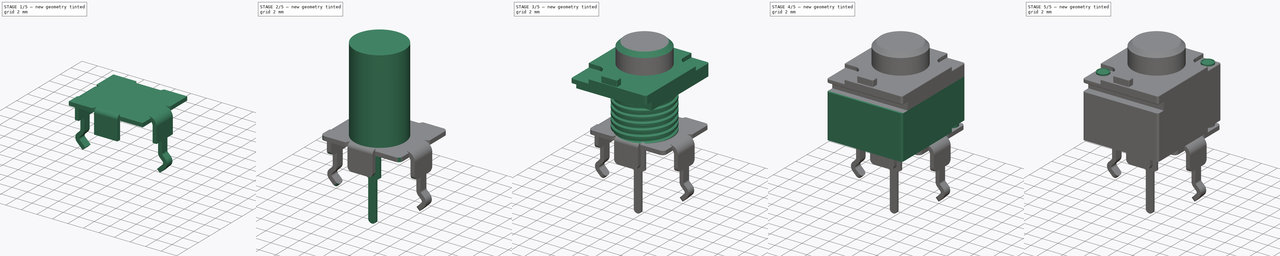
[diagram: build sequence overview — one tinted view per stage of 5, left to right]
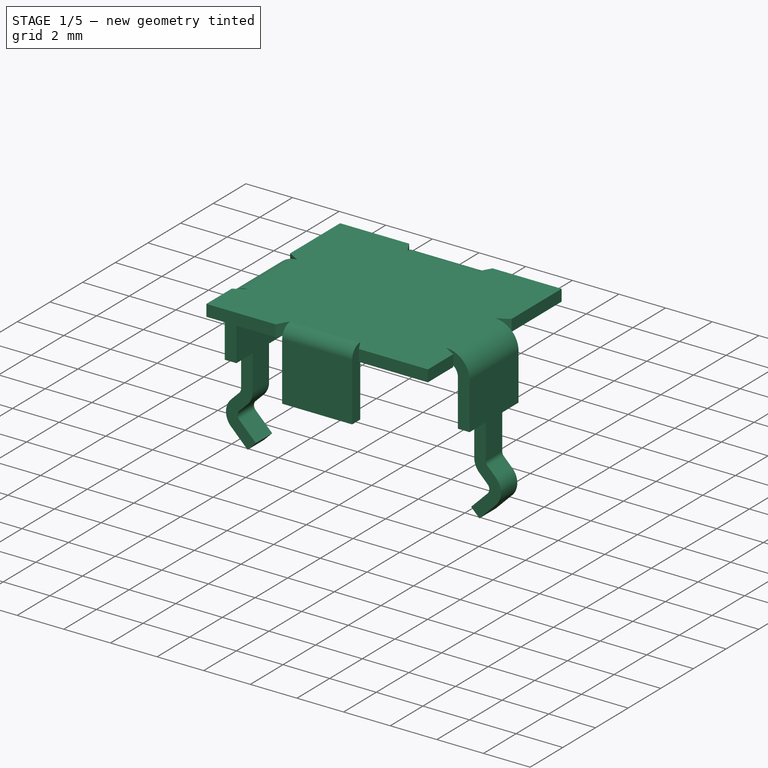
[diagram: stage 1 of 5 — iso view after this stage's code; geometry added in this stage tinted green]
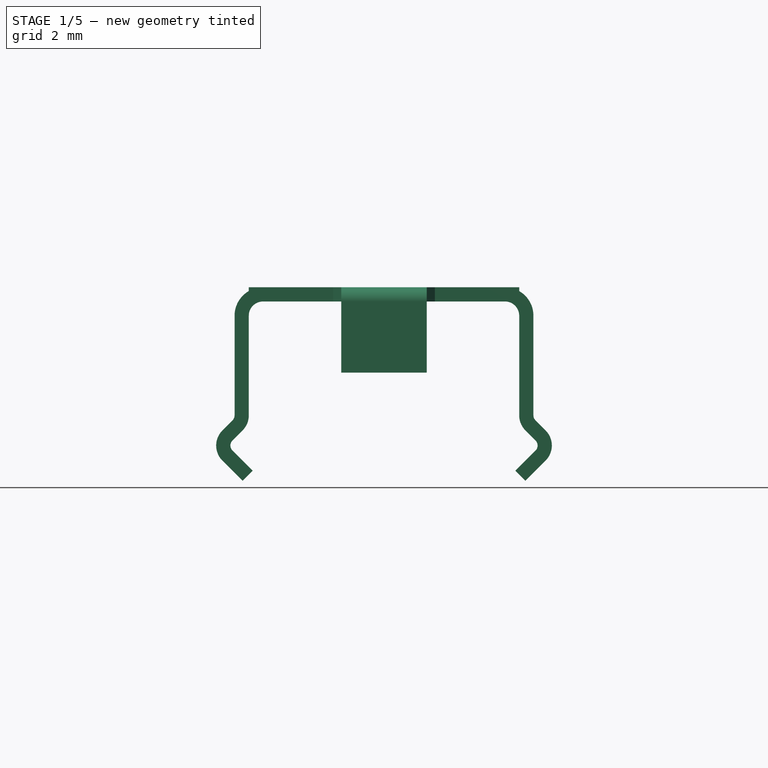
[diagram: stage 1 of 5 — front view after this stage's code; geometry added in this stage tinted green]
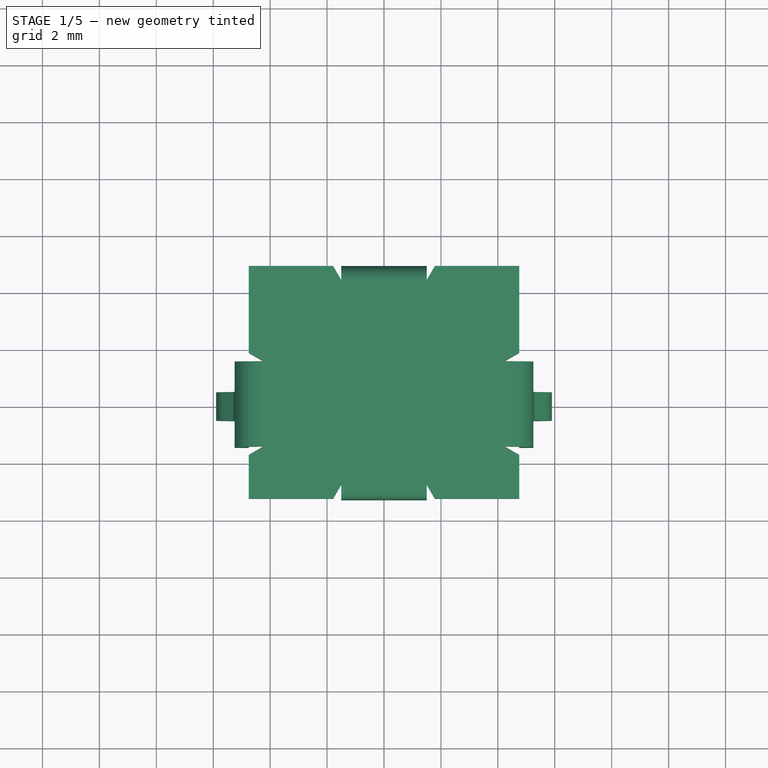
[diagram: stage 1 of 5 — top view after this stage's code; geometry added in this stage tinted green]
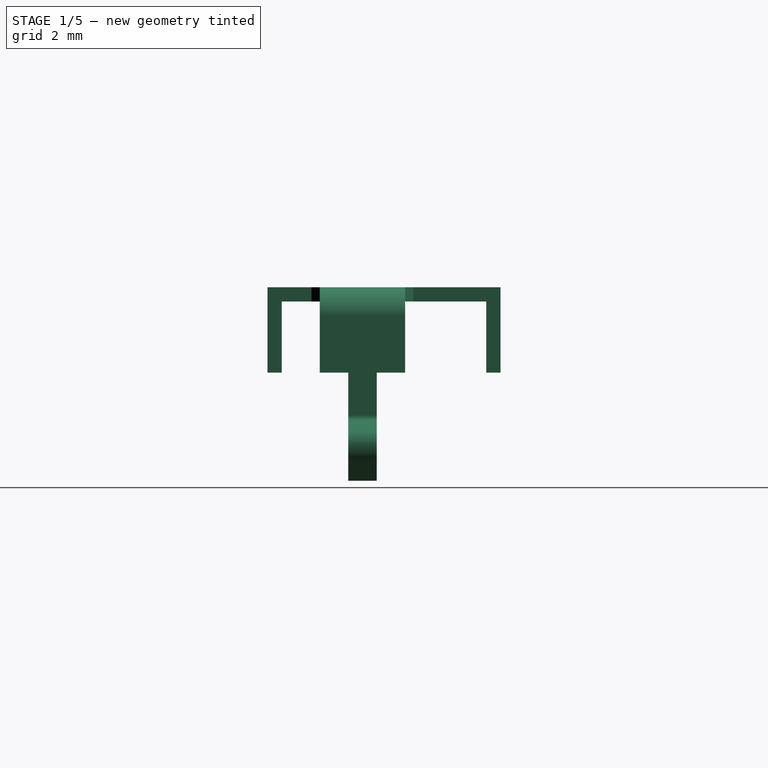
[diagram: stage 1 of 5 — right view after this stage's code; geometry added in this stage tinted green]
FCSTD DOCUMENT  (FreeCAD 0.19R16699 (Git))
Label: RD901F-40-15R
License: All rights reserved
LicenseURL: http://en.wikipedia.org/wiki/All_rights_reserved
objects: Sketcher::SketchObject×19, PartDesign::Pad×15, PartDesign::Fillet×14, PartDesign::Body×14, PartDesign::FeaturePython×7, App::Part×5, PartDesign::Pocket×3, PartDesign::Thickness×2, PartDesign::FeatureBase×2, Part::Helix×1, PartDesign::ShapeBinder×1, PartDesign::SubtractivePipe×1, PartDesign::Chamfer×1
note: 99 computed .brp shape members not serialized (recipe doc carries the construction recipe); baked Part::Feature solids carry a one-line shape summary decoded from their .brp

FEATURE [PartDesign::Body] Body013  label="Terminal_Type_40_1"
  BaseFeature = -> Body011
  Group = -> [Clone001]
  Origin = -> Origin003
  Placement = pos=(-2.5,0,0) rot=(0,0,1;0rad)
  Tip = -> Clone001
FEATURE [App::Part] Part003  label="RD901F_Terminal_Type_40_3x"
  Group = -> [Body011,Body012,Body013]
  Origin = -> Origin015
  Placement = pos=(0,-6.5,2.5) rot=(0,0,1;0rad)
FEATURE [Sketcher::SketchObject] Sketch019
  MapMode = 5
  Support = -> [XY_Plane017]
  sketch-geometry (24):
    g0: LineSegment [constr] StartX=-4.75 StartY=4.85 StartZ=0 EndX=4.75 EndY=4.85 EndZ=0
    g1: LineSegment [constr] StartX=4.75 StartY=4.85 StartZ=0 EndX=4.75 EndY=-6.5 EndZ=0
    g2: LineSegment [constr] StartX=4.75 StartY=-6.5 StartZ=0 EndX=-4.75 EndY=-6.5 EndZ=0
    g3: LineSegment [constr] StartX=-4.75 StartY=-6.5 StartZ=0 EndX=-4.75 EndY=4.85 EndZ=0
    g4: LineSegment StartX=-4.75 StartY=4.85 StartZ=0 EndX=-1.78868 EndY=4.85 EndZ=0
    g5: LineSegment StartX=-1.78868 StartY=4.85 StartZ=0 EndX=-1.5 EndY=4.35 EndZ=0
    g6: LineSegment StartX=-1.5 StartY=4.35 StartZ=0 EndX=1.5 EndY=4.35 EndZ=0
    g7: LineSegment StartX=1.5 StartY=4.35 StartZ=0 EndX=1.78868 EndY=4.85 EndZ=0
    g8: LineSegment StartX=1.78868 StartY=4.85 StartZ=0 EndX=4.75 EndY=4.85 EndZ=0
    g9: LineSegment StartX=4.75 StartY=4.85 StartZ=0 EndX=4.75 EndY=1.78868 EndZ=0
    g10: LineSegment StartX=4.75 StartY=1.78868 StartZ=0 EndX=4.25 EndY=1.5 EndZ=0
    g11: LineSegment StartX=4.25 StartY=1.5 StartZ=0 EndX=4.25 EndY=-1.5 EndZ=0
    g12: LineSegment StartX=4.25 StartY=-1.5 StartZ=0 EndX=4.75 EndY=-1.78868 EndZ=0
    g13: LineSegment StartX=4.75 StartY=-1.78868 StartZ=0 EndX=4.75 EndY=-3.3363 EndZ=0
    g14: LineSegment StartX=-4.75 StartY=-3.3363 StartZ=0 EndX=-4.75 EndY=-1.78868 EndZ=0
    g15: LineSegment StartX=-4.75 StartY=-1.78868 StartZ=0 EndX=-4.25 EndY=-1.5 EndZ=0
    g16: LineSegment StartX=-4.25 StartY=-1.5 StartZ=0 EndX=-4.25 EndY=1.5 EndZ=0
    g17: LineSegment StartX=-4.25 StartY=1.5 StartZ=0 EndX=-4.75 EndY=1.78868 EndZ=0
    g18: LineSegment StartX=-4.75 StartY=1.78868 StartZ=0 EndX=-4.75 EndY=4.85 EndZ=0
    g19: LineSegment StartX=-4.75 StartY=-3.3363 StartZ=0 EndX=-1.78868 EndY=-3.3363 EndZ=0
    g20: LineSegment StartX=-1.78868 StartY=-3.3363 StartZ=0 EndX=-1.5 EndY=-2.8363 EndZ=0
    g21: LineSegment StartX=-1.5 StartY=-2.8363 StartZ=0 EndX=1.5 EndY=-2.8363 EndZ=0
    g22: LineSegment StartX=1.5 StartY=-2.8363 StartZ=0 EndX=1.78868 EndY=-3.3363 EndZ=0
    g23: LineSegment StartX=1.78868 StartY=-3.3363 StartZ=0 EndX=4.75 EndY=-3.3363 EndZ=0
  constraints (60):
    c: Coincident(g0,g1)
    c: Coincident(g1,g2)
    c: Coincident(g2,g3)
    c: Coincident(g3,g0)
    c: Horizontal(g2)
    c: Vertical(g3)
    c: Symmetric(g0,g0,g-2)
    c: DistanceX(g0,g0) = 9.5
    c: DistanceY(g-1,g0) = 4.85
    c: DistanceY(g1,g-1) = 6.5
    c: Vertical(g1)
    c: Coincident(g0,g4)
    c: PointOnObject(g4,g0)
    c: Coincident(g4,g5)
    c: Coincident(g5,g6)
    c: Coincident(g6,g7)
    c: Coincident(g7,g8)
    c: Coincident(g8,g0)
    c: Coincident(g8,g9)
    c: PointOnObject(g9,g1)
    c: Coincident(g9,g10)
    c: Coincident(g10,g11)
    c: Coincident(g11,g12)
    c: Coincident(g12,g13)
    c: PointOnObject(g13,g1)
    c: PointOnObject(g14,g3)
    c: PointOnObject(g14,g3)
    c: Coincident(g14,g15)
    c: Coincident(g15,g16)
    c: Coincident(g16,g17)
    c: Coincident(g17,g18)
    c: Coincident(g18,g4)
    c: DistanceY(g5,g4) = 0.5
    c: DistanceX(g17,g16) = 0.5
    c: DistanceX(g10,g9) = 0.5
    c: DistanceY(g11,g11) = 3
    c: Symmetric(g11,g10,g-1)
    c: DistanceY(g16,g16) = 3
    c: Symmetric(g16,g15,g-1)
    c: Angle(g17,g15) = 1.0472
    c: Symmetric(g17,g14,g-1)
    c: Angle(g12,g10) = 1.0472
    c: Symmetric(g12,g9,g-1)
    c: DistanceX(g6,g6) = 3
    c: Angle(g7,g5) = 1.0472
    c: Symmetric(g6,g5,g-2)
    c: Symmetric(g7,g4,g-2)
    c: Coincident(g14,g19)
    c: Horizontal(g19)
    c: Coincident(g19,g20)
    c: Coincident(g20,g21)
    c: Coincident(g21,g22)
    c: Coincident(g22,g23)
    c: Coincident(g23,g13)
    c: Horizontal(g23)
    c: Symmetric(g21,g20,g-2)
    c: DistanceX(g21,g21) = 3
    c: Angle(g20,g22) = 1.0472
    c: Symmetric(g22,g19,g-2)
    c: DistanceY(g22,g21) = 0.5
FEATURE [PartDesign::Pad] Pad012
  Length = 0.5
  Length2 = 100
  Profile = -> Sketch019
  Reversed = true
  Type = 0
FEATURE [PartDesign::FeaturePython] Bend001  # WARN: FeaturePython — macro-defined, semantics opaque (R4)
  AutoMiter = true
  BaseFeature = -> Pad012
  BendType = 0
  LengthList = [2.5]
  ReliefFactor = 0.7
  UseReliefFactor = false
  angle = 90
  baseObject = -> Pad012 [Face8,Face18]
  bendAList = [90]
  extend1 = 0
  extend2 = 0
  gap1 = 0
  gap2 = 0
  invert = false
  kfactor = 0.5
  length = 2.5
  miterangle1 = 0
  miterangle2 = 0
  offset = 0
  radius = 0.001
  reliefType = 0
  reliefd = 1
  reliefw = 0.8
  sketchflip = false
  sketchinvert = false
  unfold = false
FEATURE [PartDesign::FeaturePython] Bend002  # WARN: FeaturePython — macro-defined, semantics opaque (R4)
  AutoMiter = true
  BaseFeature = -> Bend001
  BendType = 0
  LengthList = [2]
  ReliefFactor = 0.7
  UseReliefFactor = false
  angle = 90
  baseObject = -> Bend001 [Face17,Face27]
  bendAList = [90]
  extend1 = 0
  extend2 = 0
  gap1 = 0
  gap2 = 0
  invert = false
  kfactor = 0.5
  length = 2
  miterangle1 = 0
  miterangle2 = 0
  offset = 0
  radius = 0.5
  reliefType = 0
  reliefd = 1
  reliefw = 0.8
  sketchflip = false
  sketchinvert = false
  unfold = false
FEATURE [Sketcher::SketchObject] Sketch020
  AttachmentOffset = pos=(0,0,-3) rot=(0,0,1;0rad)
  MapMode = 5
  Placement = pos=(0,0,-3) rot=(0,0,1;0rad)
  Support = -> [XY_Plane017]
  expr: Constraints[17] = (9.5 + 0.5) / 2
  sketch-geometry (8):
    g0: LineSegment StartX=-5.25 StartY=-0.5 StartZ=0 EndX=-4.75 EndY=-0.5 EndZ=0
    g1: LineSegment StartX=-4.75 StartY=-0.5 StartZ=0 EndX=-4.75 EndY=0.5 EndZ=0
    g2: LineSegment StartX=-4.75 StartY=0.5 StartZ=0 EndX=-5.25 EndY=0.5 EndZ=0
    g3: LineSegment StartX=-5.25 StartY=0.5 StartZ=0 EndX=-5.25 EndY=-0.5 EndZ=0
    g4: LineSegment [constr] StartX=-5.25 StartY=-0.5 StartZ=0 EndX=-4.75 EndY=0.5 EndZ=0
    g5: LineSegment [constr] StartX=-5.25 StartY=0.5 StartZ=0 EndX=-4.75 EndY=-0.5 EndZ=0
    g6: GeomPoint X=-5 Y=8e-16 Z=0
    g7: GeomPoint X=-5 Y=8e-16 Z=0
  constraints (18):
    c: Coincident(g0,g1)
    c: Coincident(g1,g2)
    c: Coincident(g2,g3)
    c: Coincident(g3,g0)
    c: Horizontal(g0)
    c: Horizontal(g2)
    c: Vertical(g1)
    c: Symmetric(g2,g0,g-1)
    c: DistanceY(g3,g3) = 1
    c: DistanceX(g2,g2) = 0.5
    c: Coincident(g4,g0)
    c: Coincident(g4,g1)
    c: Coincident(g5,g2)
    c: PointOnObject(g6,g4)
    c: PointOnObject(g7,g5)
    c: Coincident(g6,g7)
    c: Coincident(g5,g0)
    c: DistanceX(g6,g-1) = 5
FEATURE [PartDesign::Pad] Pad013
  BaseFeature = -> Bend002
  Length = 1.5
  Length2 = 100
  Profile = -> Sketch020
  Reversed = true
  Type = 0
FEATURE [PartDesign::FeaturePython] Bend003  # WARN: FeaturePython — macro-defined, semantics opaque (R4)
  AutoMiter = true
  BaseFeature = -> Pad013
  BendType = 0
  LengthList = [0.5]
  ReliefFactor = 0.7
  UseReliefFactor = false
  angle = -45
  baseObject = -> Pad013 [Face60]
  bendAList = [-45]
  extend1 = 0
  extend2 = 0
  gap1 = 0
  gap2 = 0
  invert = false
  kfactor = 0.5
  length = 0.5
  miterangle1 = 0
  miterangle2 = 0
  offset = 0
  radius = 0.25
  reliefType = 0
  reliefd = 1
  reliefw = 0.8
  sketchflip = false
  sketchinvert = false
  unfold = false
FEATURE [PartDesign::FeaturePython] Bend004  # WARN: FeaturePython — macro-defined, semantics opaque (R4)
  AutoMiter = true
  BaseFeature = -> Bend003
  BendType = 0
  LengthList = [1]
  ReliefFactor = 0.7
  UseReliefFactor = false
  angle = 90
  baseObject = -> Bend003 [Face3]
  bendAList = [90]
  extend1 = 0
  extend2 = 0
  gap1 = 0
  gap2 = 0
  invert = false
  kfactor = 0.5
  length = 1
  miterangle1 = 0
  miterangle2 = 0
  offset = 0
  radius = 0.25
  reliefType = 0
  reliefd = 1
  reliefw = 0.8
  sketchflip = false
  sketchinvert = false
  unfold = false
FEATURE [Sketcher::SketchObject] Sketch002
  AttachmentOffset = pos=(0,0,-3) rot=(0,0,1;0rad)
  MapMode = 5
  Placement = pos=(0,0,-3) rot=(0,0,1;0rad)
  Support = -> [XY_Plane017]
  sketch-geometry (8):
    g0: LineSegment StartX=4.75 StartY=0.5 StartZ=0 EndX=5.25 EndY=0.5 EndZ=0
    g1: LineSegment StartX=5.25 StartY=0.5 StartZ=0 EndX=5.25 EndY=-0.5 EndZ=0
    g2: LineSegment StartX=5.25 StartY=-0.5 StartZ=0 EndX=4.75 EndY=-0.5 EndZ=0
    g3: LineSegment StartX=4.75 StartY=-0.5 StartZ=0 EndX=4.75 EndY=0.5 EndZ=0
    g4: LineSegment [constr] StartX=5.25 StartY=0.5 StartZ=0 EndX=4.75 EndY=-0.5 EndZ=0
    g5: LineSegment [constr] StartX=5.25 StartY=-0.5 StartZ=0 EndX=4.75 EndY=0.5 EndZ=0
    g6: GeomPoint X=5 Y=6e-16 Z=0
    g7: GeomPoint X=5 Y=6e-16 Z=0
  constraints (18):
    c: Coincident(g0,g1)
    c: Coincident(g1,g2)
    c: Coincident(g2,g3)
    c: Coincident(g3,g0)
    c: Horizontal(g0)
    c: Horizontal(g2)
    c: Vertical(g3)
    c: Symmetric(g0,g1,g-1)
    c: DistanceY(g1,g1) = 1
    c: DistanceX(g0,g0) = 0.5
    c: Coincident(g4,g0)
    c: Coincident(g4,g2)
    c: Coincident(g5,g1)
    c: Coincident(g5,g0)
    c: PointOnObject(g6,g5)
    c: PointOnObject(g7,g4)
    c: Coincident(g6,g7)
    c: DistanceX(g-1,g6) = 5
FEATURE [PartDesign::Pad] Pad014
  BaseFeature = -> Bend004
  Length = 1.5
  Length2 = 100
  Profile = -> Sketch002
  Reversed = true
  Type = 0
FEATURE [PartDesign::FeaturePython] Bend005  # WARN: FeaturePython — macro-defined, semantics opaque (R4)
  AutoMiter = true
  BaseFeature = -> Pad014
  BendType = 0
  LengthList = [0.5]
  ReliefFactor = 0.7
  UseReliefFactor = false
  angle = 45
  baseObject = -> Pad014 [Face82]
  bendAList = [45]
  extend1 = 0
  extend2 = 0
  gap1 = 0
  gap2 = 0
  invert = false
  kfactor = 0.5
  length = 0.5
  miterangle1 = 0
  miterangle2 = 0
  offset = 0
  radius = 0.25
  reliefType = 0
  reliefd = 1
  reliefw = 0.8
  sketchflip = false
  sketchinvert = false
  unfold = false
FEATURE [PartDesign::FeaturePython] Bend006  # WARN: FeaturePython — macro-defined, semantics opaque (R4)
  AutoMiter = true
  BaseFeature = -> Bend005
  BendType = 0
  LengthList = [1]
  ReliefFactor = 0.7
  UseReliefFactor = false
  angle = -90
  baseObject = -> Bend005 [Face3]
  bendAList = [-90]
  extend1 = 0
  extend2 = 0
  gap1 = 0
  gap2 = 0
  invert = false
  kfactor = 0.5
  length = 1
  miterangle1 = 0
  miterangle2 = 0
  offset = 0
  radius = 0.25
  reliefType = 0
  reliefd = 1
  reliefw = 0.8
  sketchflip = false
  sketchinvert = false
  unfold = false
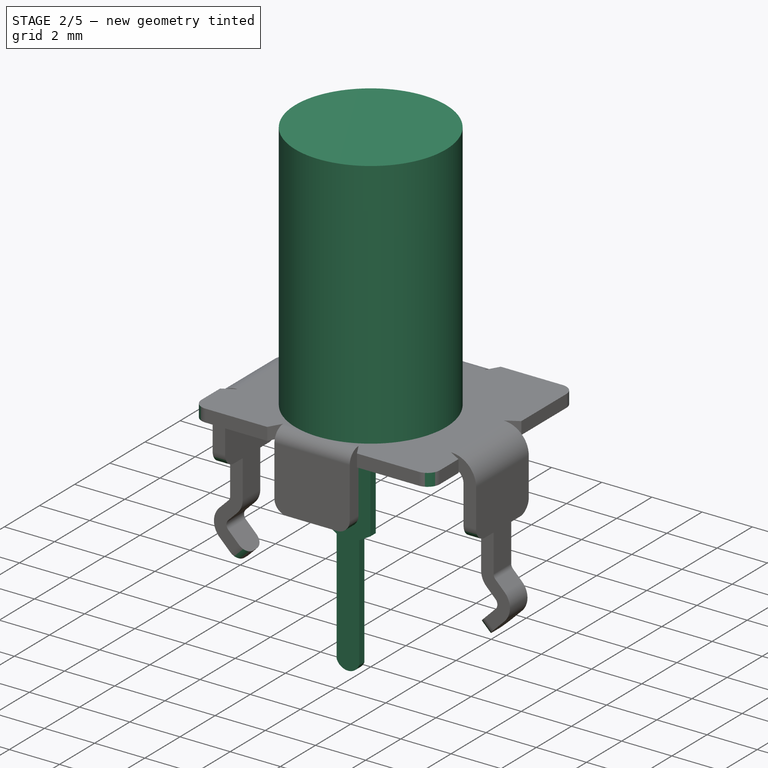
[diagram: stage 2 of 5 — iso view after this stage's code; geometry added in this stage tinted green]
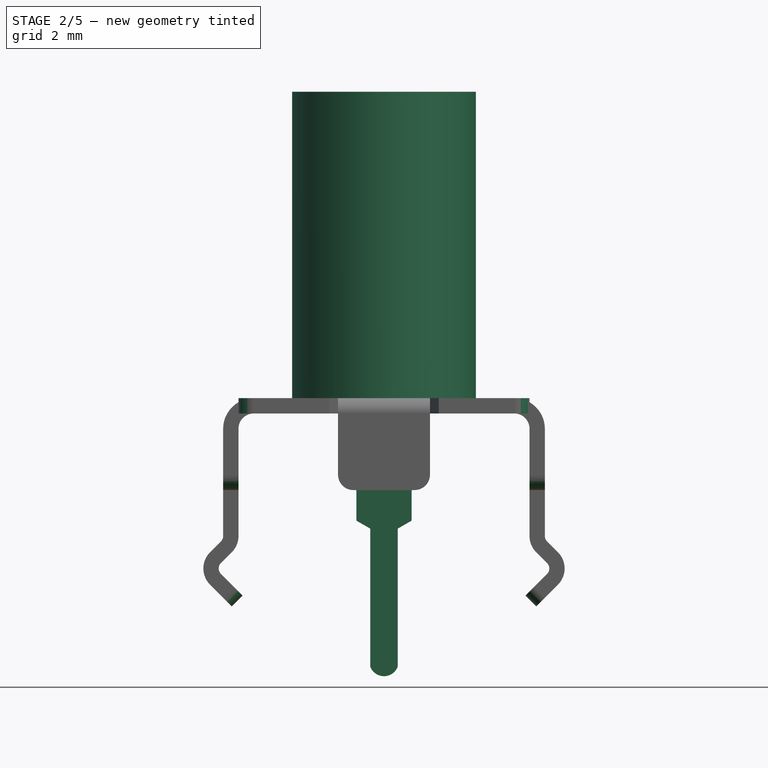
[diagram: stage 2 of 5 — front view after this stage's code; geometry added in this stage tinted green]
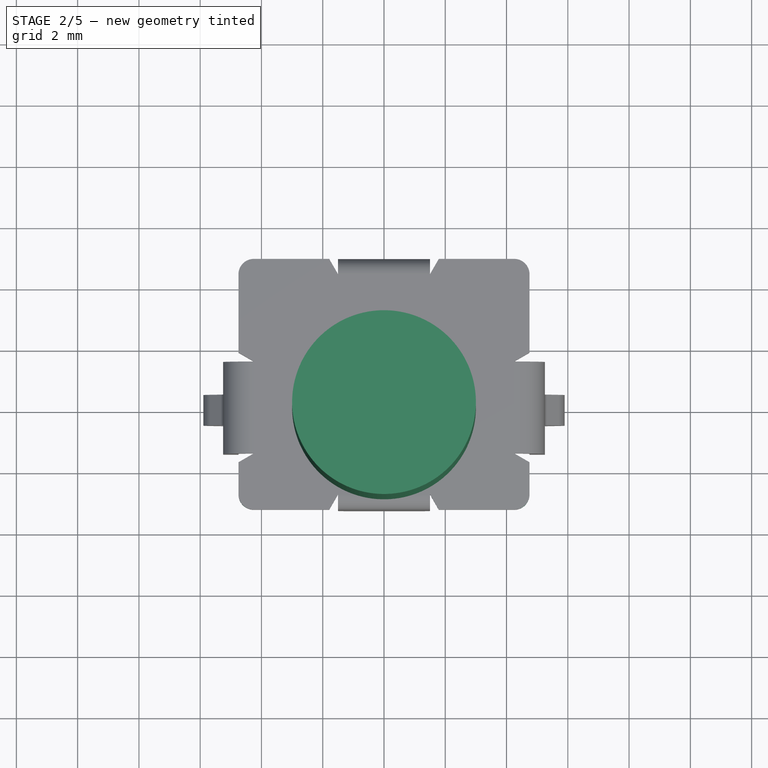
[diagram: stage 2 of 5 — top view after this stage's code; geometry added in this stage tinted green]
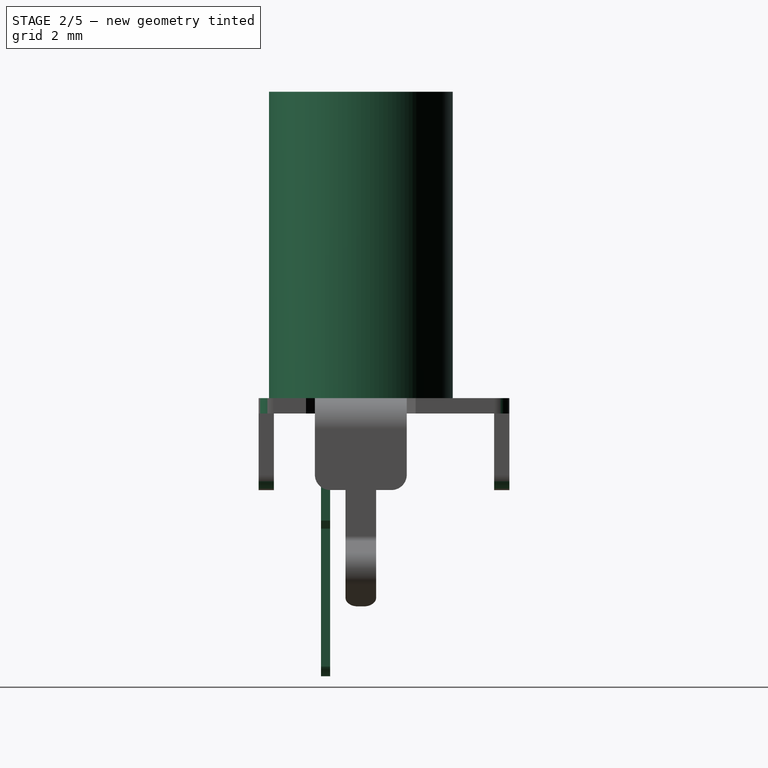
[diagram: stage 2 of 5 — right view after this stage's code; geometry added in this stage tinted green]
FEATURE [PartDesign::Body] Body009  label="Bushing_M7x0.75x5mm"
  Group = -> [Sketch015,Pad008,Sketch001,SubtractivePipe,ReferenceHelix]
  Origin = -> Origin010
  Placement = pos=(0,0,7.5) rot=(0,0,1;0rad)
  Tip = -> SubtractivePipe
FEATURE [App::Part] Part001  label="Bushing_M7x0.75x5"
  Group = -> [Body009,Helix]
  Origin = -> Origin011
FEATURE [Sketcher::SketchObject] Sketch016
  MapMode = 5
  Support = -> [XY_Plane012]
  sketch-geometry (1):
    g0: Circle CenterX=0 CenterY=0 CenterZ=0 NormalX=0 NormalY=0 NormalZ=1 AngleXU=0 Radius=3
  constraints (2):
    c: Coincident(g0,g-1)
    c: Radius(g0) = 3
FEATURE [PartDesign::Pad] Pad009
  Length = 10
  Length2 = 100
  Profile = -> Sketch016
  Type = 0
FEATURE [PartDesign::Body] Body010  label="RD901F_Shaft_15R"
  Group = -> [Sketch016,Pad009,Chamfer]
  Origin = -> Origin012
  Placement = pos=(0,0,12.5) rot=(0,0,1;0rad)
  Tip = -> Chamfer
FEATURE [App::Part] Part002  label="Shaft_Type_15R"
  Group = -> [Body010]
  Origin = -> Origin013
FEATURE [Sketcher::SketchObject] Sketch017
  MapMode = 5
  Placement = pos=(0,0,0) rot=(1,0,0;1.5708rad)
  Support = -> [XZ_Plane014]
  sketch-geometry (4):
    g0: LineSegment StartX=-0.9 StartY=0.15 StartZ=0 EndX=0.9 EndY=0.15 EndZ=0
    g1: LineSegment StartX=0.9 StartY=0.15 StartZ=0 EndX=0.9 EndY=-0.15 EndZ=0
    g2: LineSegment StartX=0.9 StartY=-0.15 StartZ=0 EndX=-0.9 EndY=-0.15 EndZ=0
    g3: LineSegment StartX=-0.9 StartY=-0.15 StartZ=0 EndX=-0.9 EndY=0.15 EndZ=0
  constraints (10):
    c: Coincident(g0,g1)
    c: Coincident(g1,g2)
    c: Coincident(g2,g3)
    c: Coincident(g3,g0)
    c: Horizontal(g2)
    c: Vertical(g3)
    c: DistanceX(g0,g0) = 1.8
    c: Symmetric(g0,g0,g-2)
    c: Symmetric(g0,g1,g-1)
    c: DistanceY(g1,g0) = 0.3
FEATURE [PartDesign::Pad] Pad010
  Length = 0.5
  Length2 = 2
  Placement = pos=(0,0,0) rot=(1,0,0;1.5708rad)
  Profile = -> Sketch017
  Type = 0
FEATURE [PartDesign::FeaturePython] Bend  # WARN: FeaturePython — macro-defined, semantics opaque (R4)
  AutoMiter = true
  BaseFeature = -> Pad010
  BendType = 0
  LengthList = [0.001]
  ReliefFactor = 0.7
  UseReliefFactor = false
  angle = 90
  baseObject = -> Pad010 [Face6]
  bendAList = [90]
  extend1 = 0
  extend2 = 0
  gap1 = 0
  gap2 = 0
  invert = false
  kfactor = 0.5
  length = 0.001
  miterangle1 = 0
  miterangle2 = 0
  offset = 0
  radius = 0.5
  reliefType = 0
  reliefd = 1
  reliefw = 0.8
  sketchflip = false
  sketchinvert = false
  unfold = false
FEATURE [Sketcher::SketchObject] Sketch018
  AttachmentOffset = pos=(0,0,1.15) rot=(0,0,1;0rad)
  MapMode = 5
  Placement = pos=(0,-1.15,-3e-16) rot=(1,0,0;1.5708rad)
  Support = -> [XZ_Plane014]
  sketch-geometry (9):
    g0: LineSegment StartX=0.9 StartY=-4 StartZ=0 EndX=0.45 EndY=-4.25981 EndZ=0
    g1: LineSegment StartX=0.45 StartY=-4.25981 StartZ=0 EndX=0.45 EndY=-8.75981 EndZ=0
    g2: LineSegment StartX=-0.9 StartY=-4 StartZ=0 EndX=-0.45 EndY=-4.25981 EndZ=0
    g3: LineSegment StartX=-0.45 StartY=-4.25981 StartZ=0 EndX=-0.45 EndY=-8.75981 EndZ=0
    g4: ArcOfCircle CenterX=0 CenterY=-8.59987 CenterZ=0 NormalX=0 NormalY=0 NormalZ=1 AngleXU=0 Radius=0.477577 StartAngle=3.48308 EndAngle=5.9417
    g5: GeomPoint X=0 Y=-9.07745 Z=0
    g6: LineSegment StartX=-0.9 StartY=-4 StartZ=0 EndX=-0.9 EndY=-0.65 EndZ=0
    g7: LineSegment StartX=-0.9 StartY=-0.65 StartZ=0 EndX=0.9 EndY=-0.65 EndZ=0
    g8: LineSegment StartX=0.9 StartY=-0.65 StartZ=0 EndX=0.9 EndY=-4 EndZ=0
  constraints (25):
    c: Coincident(g0,g1)
    c: Vertical(g1)
    c: Coincident(g2,g3)
    c: Vertical(g3)
    c: PointOnObject(g4,g-2)
    c: Coincident(g4,g3)
    c: Coincident(g4,g1)
    c: DistanceX(g2,g0) = 1.8
    c: DistanceX(g3,g1) = 0.9
    c: Horizontal(g3,g1)
    c: PointOnObject(g5,g4)
    c: PointOnObject(g5,g-2)
    c: Horizontal(g2,g0)
    c: Angle(g0,g2) = 2.0944
    c: Symmetric(g0,g2,g-2)
    c: DistanceY(g3,g3) = 4.5
    c: DistanceY(g2,g-1) = 4
    c: Coincident(g2,g6)
    c: Vertical(g6)
    c: Coincident(g6,g7)
    c: Horizontal(g7)
    c: Coincident(g7,g8)
    c: Coincident(g8,g0)
    c: Vertical(g8)
    c: DistanceY(g6,g-1) = 0.65
FEATURE [PartDesign::Pad] Pad011
  BaseFeature = -> Bend
  Length = 0.3
  Length2 = 100
  Midplane = true
  Profile = -> Sketch018
  Type = 0
FEATURE [PartDesign::Body] Body011  label="Terminal_Type_40_2"
  Group = -> [Sketch017,Pad010,Bend,Sketch018,Pad011]
  Origin = -> Origin014
  Tip = -> Pad011
FEATURE [PartDesign::FeatureBase] Clone
  BaseFeature = -> Body011
FEATURE [PartDesign::Body] Body012  label="Terminal_Type_40_3"
  BaseFeature = -> Body011
  Group = -> [Clone]
  Origin = -> Origin016
  Placement = pos=(2.5,0,0) rot=(0,0,1;0rad)
  Tip = -> Clone
FEATURE [PartDesign::FeatureBase] Clone001
  BaseFeature = -> Body011
FEATURE [PartDesign::Fillet] Fillet011
  Base = -> Bend006 [Edge215,Edge2,Edge8,Edge216]
  BaseFeature = -> Bend006
  Radius = 0.4
FEATURE [PartDesign::Fillet] Fillet012
  Base = -> Fillet011 [Edge63,Edge183,Edge182,Edge185,Edge175,Edge176,Edge184,Edge51]
  BaseFeature = -> Fillet011
  Radius = 0.5
FEATURE [PartDesign::Fillet] Fillet013
  Base = -> Fillet012 [Edge108,Edge107,Edge91,Edge99]
  BaseFeature = -> Fillet012
  Radius = 0.5
FEATURE [PartDesign::Body] Body014
  Group = -> [Sketch019,Pad012,Bend001,Bend002,Sketch020,Pad013,Bend003,Bend004,Sketch002,Pad014,Bend005,Bend006,Fillet011,Fillet012,Fillet013]
  Origin = -> Origin017
  Tip = -> Fillet013
FEATURE [App::Part] Part004  label="RD901F_Bracket"
  Group = -> [Body014]
  Origin = -> Origin018
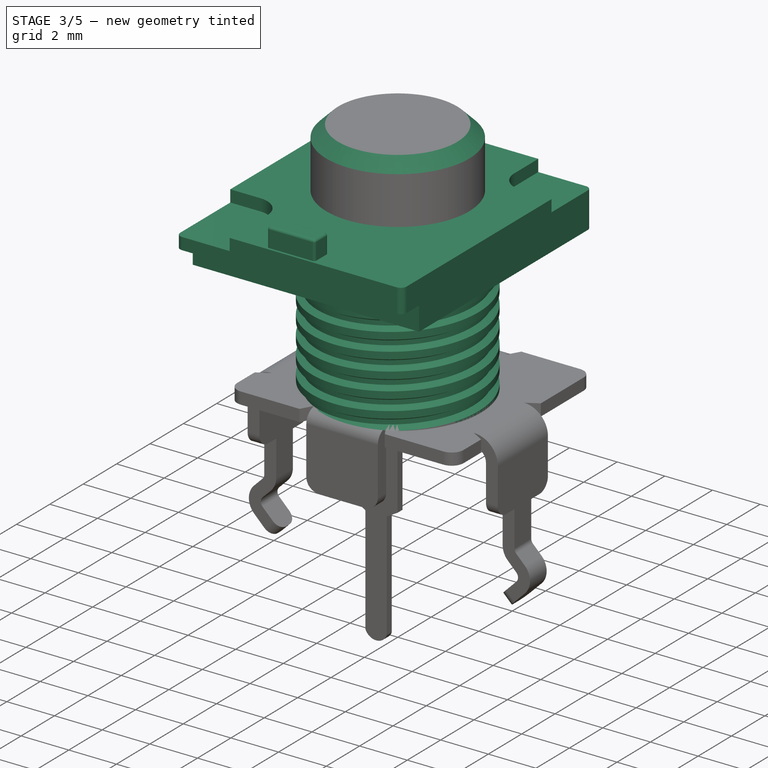
[diagram: stage 3 of 5 — iso view after this stage's code; geometry added in this stage tinted green]
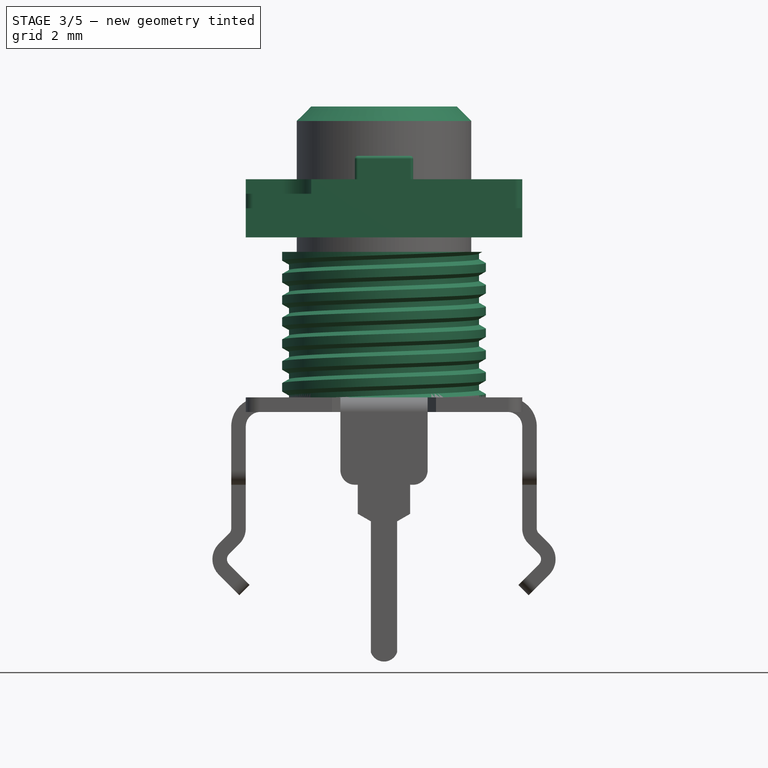
[diagram: stage 3 of 5 — front view after this stage's code; geometry added in this stage tinted green]
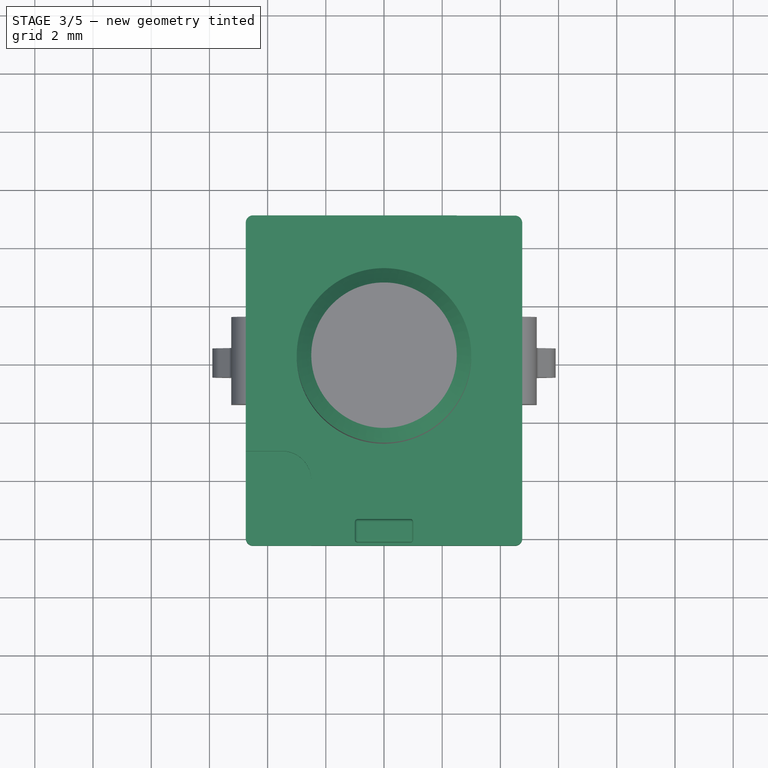
[diagram: stage 3 of 5 — top view after this stage's code; geometry added in this stage tinted green]
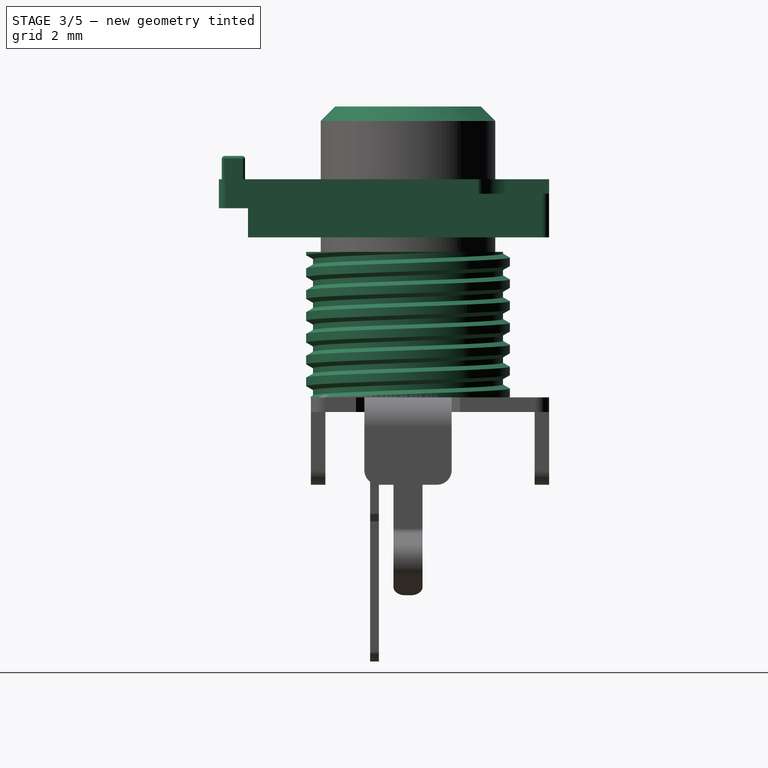
[diagram: stage 3 of 5 — right view after this stage's code; geometry added in this stage tinted green]
FEATURE [Sketcher::SketchObject] Sketch005
  AttachmentOffset = pos=(0,0,5.5) rot=(0,0,1;0rad)
  MapMode = 5
  Placement = pos=(0,0,5.5) rot=(0,0,1;0rad)
  Support = -> [XY_Plane002]
  expr: Constraints[10] = Sketch.Constraints[10]
  expr: Constraints[9] = Sketch.Constraints[9]
  expr: Constraints[8] = Sketch.Constraints[8]
  sketch-geometry (4):
    g0: LineSegment StartX=-4.75 StartY=4.85 StartZ=0 EndX=4.75 EndY=4.85 EndZ=0
    g1: LineSegment StartX=4.75 StartY=4.85 StartZ=0 EndX=4.75 EndY=-6.5 EndZ=0
    g2: LineSegment StartX=4.75 StartY=-6.5 StartZ=0 EndX=-4.75 EndY=-6.5 EndZ=0
    g3: LineSegment StartX=-4.75 StartY=-6.5 StartZ=0 EndX=-4.75 EndY=4.85 EndZ=0
  constraints (11):
    c: Coincident(g0,g1)
    c: Coincident(g1,g2)
    c: Coincident(g2,g3)
    c: Coincident(g3,g0)
    c: Horizontal(g2)
    c: Vertical(g1)
    c: Vertical(g3)
    c: Symmetric(g0,g0,g-2)
    c: DistanceX(g0,g0) = 9.5
    c: DistanceY(g-1,g0) = 4.85
    c: DistanceY(g1,g-1) = 6.5
FEATURE [PartDesign::Pad] Pad002
  Length = 2
  Length2 = 100
  Profile = -> Sketch005
  Type = 0
FEATURE [Sketcher::SketchObject] Sketch006
  AttachmentOffset = pos=(0,5.5,6.5) rot=(0,0,1;0rad)
  MapMode = 5
  Placement = pos=(0,-6.5,5.5) rot=(1,0,0;1.5708rad)
  Support = -> [XZ_Plane002]
  sketch-geometry (4):
    g0: LineSegment StartX=-4.75 StartY=1 StartZ=0 EndX=4.75 EndY=1 EndZ=0
    g1: LineSegment StartX=4.75 StartY=1 StartZ=0 EndX=4.75 EndY=0 EndZ=0
    g2: LineSegment StartX=4.75 StartY=0 StartZ=0 EndX=-4.75 EndY=0 EndZ=0
    g3: LineSegment StartX=-4.75 StartY=0 StartZ=0 EndX=-4.75 EndY=1 EndZ=0
  constraints (11):
    c: Coincident(g0,g1)
    c: Coincident(g1,g2)
    c: Coincident(g2,g3)
    c: Coincident(g3,g0)
    c: Horizontal(g2)
    c: Vertical(g1)
    c: Vertical(g3)
    c: Symmetric(g0,g0,g-2)
    c: DistanceX(g0,g0) = 9.5
    c: DistanceY(g1,g1) = 1
    c: PointOnObject(g2,g-1)
FEATURE [PartDesign::Pocket] Pocket
  BaseFeature = -> Pad002
  Length = 1
  Length2 = 100
  Profile = -> Sketch006
  Type = 0
FEATURE [Sketcher::SketchObject] Sketch008
  AttachmentOffset = pos=(0,0,7.5) rot=(0,0,1;0rad)
  MapMode = 5
  Placement = pos=(0,0,7.5) rot=(0,0,1;0rad)
  Support = -> [XY_Plane002]
  expr: Constraints[10] = Sketch.Constraints[10]
  expr: Constraints[9] = Sketch.Constraints[9]
  expr: Constraints[8] = Sketch.Constraints[8]
  sketch-geometry (14):
    g0: LineSegment [constr] StartX=-4.75 StartY=4.85 StartZ=0 EndX=4.75 EndY=4.85 EndZ=0
    g1: LineSegment [constr] StartX=4.75 StartY=4.85 StartZ=0 EndX=4.75 EndY=-6.5 EndZ=0
    g2: LineSegment [constr] StartX=4.75 StartY=-6.5 StartZ=0 EndX=-4.75 EndY=-6.5 EndZ=0
    g3: LineSegment [constr] StartX=-4.75 StartY=-6.5 StartZ=0 EndX=-4.75 EndY=4.85 EndZ=0
    g4: LineSegment StartX=4.75 StartY=4.85 StartZ=0 EndX=2.5 EndY=4.85 EndZ=0
    g5: LineSegment StartX=2.5 StartY=4.85 StartZ=0 EndX=2.5 EndY=3.425 EndZ=0
    g6: LineSegment StartX=3.5 StartY=2.425 StartZ=0 EndX=4.75 EndY=2.425 EndZ=0
    g7: LineSegment StartX=4.75 StartY=2.425 StartZ=0 EndX=4.75 EndY=4.85 EndZ=0
    g8: LineSegment StartX=-4.75 StartY=-6.5 StartZ=0 EndX=-2.5 EndY=-6.5 EndZ=0
    g9: LineSegment StartX=-2.5 StartY=-6.5 StartZ=0 EndX=-2.5 EndY=-4.25 EndZ=0
    g10: LineSegment StartX=-3.5 StartY=-3.25 StartZ=0 EndX=-4.75 EndY=-3.25 EndZ=0
    g11: LineSegment StartX=-4.75 StartY=-3.25 StartZ=0 EndX=-4.75 EndY=-6.5 EndZ=0
    g12: ArcOfCircle CenterX=3.5 CenterY=3.425 CenterZ=0 NormalX=0 NormalY=0 NormalZ=1 AngleXU=0 Radius=1 StartAngle=3.14159 EndAngle=4.71239
    g13: ArcOfCircle CenterX=-3.5 CenterY=-4.25 CenterZ=0 NormalX=0 NormalY=0 NormalZ=1 AngleXU=0 Radius=1 StartAngle=0 EndAngle=1.5708
  constraints (37):
    c: Coincident(g0,g1)
    c: Coincident(g1,g2)
    c: Coincident(g2,g3)
    c: Coincident(g3,g0)
    c: Horizontal(g2)
    c: Vertical(g1)
    c: Vertical(g3)
    c: Symmetric(g0,g0,g-2)
    c: DistanceX(g0,g0) = 9.5
    c: DistanceY(g-1,g0) = 4.85
    c: DistanceY(g1,g-1) = 6.5
    c: Coincident(g4,g5)
    c: Coincident(g6,g7)
    c: Coincident(g7,g4)
    c: Horizontal(g4)
    c: Horizontal(g6)
    c: Vertical(g5)
    c: Vertical(g7)
    c: Coincident(g4,g0)
    c: Coincident(g8,g9)
    c: Coincident(g10,g11)
    c: Coincident(g11,g8)
    c: Horizontal(g8)
    c: Horizontal(g10)
    c: Vertical(g9)
    c: Vertical(g11)
    c: Coincident(g8,g2)
    c: DistanceX(g4,g4) = 2.25
    c: DistanceY(g11,g11) = 3.25
    c: DistanceY(g7,g7) = 2.425
    c: Tangent(g5,g12) = -1.5708
    c: Tangent(g6,g12) = -1.5708
    c: Tangent(g9,g13) = -1.5708
    c: Tangent(g10,g13) = -1.5708
    c: DistanceX(g13,g9) = 1
    c: DistanceX(g8,g8) = 2.25
    c: DistanceX(g5,g12) = 1
FEATURE [PartDesign::Pocket] Pocket002
  BaseFeature = -> Pocket
  Length = 0.5
  Length2 = 100
  Profile = -> Sketch008
  Type = 0
FEATURE [PartDesign::Body] Body007  label="Rivet_Bot_2"
  Group = -> [Sketch013,Pad006,Fillet005]
  Origin = -> Origin007
  Tip = -> Fillet005
FEATURE [Sketcher::SketchObject] Sketch014
  AttachmentOffset = pos=(0,0,7.5) rot=(0,0,1;0rad)
  MapMode = 5
  Placement = pos=(0,0,7.5) rot=(0,0,1;0rad)
  Support = -> [XY_Plane008]
  sketch-geometry (8):
    g0: LineSegment StartX=-1 StartY=-5.6 StartZ=0 EndX=1 EndY=-5.6 EndZ=0
    g1: LineSegment StartX=1 StartY=-5.6 StartZ=0 EndX=1 EndY=-6.4 EndZ=0
    g2: LineSegment StartX=1 StartY=-6.4 StartZ=0 EndX=-1 EndY=-6.4 EndZ=0
    g3: LineSegment StartX=-1 StartY=-6.4 StartZ=0 EndX=-1 EndY=-5.6 EndZ=0
    g4: LineSegment [constr] StartX=1 StartY=-5.6 StartZ=0 EndX=-1 EndY=-6.4 EndZ=0
    g5: LineSegment [constr] StartX=-1 StartY=-5.6 StartZ=0 EndX=1 EndY=-6.4 EndZ=0
    g6: GeomPoint X=2e-16 Y=-6 Z=0
    g7: GeomPoint X=2e-16 Y=-6 Z=0
  constraints (18):
    c: Coincident(g0,g1)
    c: Coincident(g1,g2)
    c: Coincident(g2,g3)
    c: Coincident(g3,g0)
    c: Horizontal(g2)
    c: Vertical(g1)
    c: Vertical(g3)
    c: Symmetric(g0,g0,g-2)
    c: DistanceX(g2,g2) = 2
    c: DistanceY(g1,g1) = 0.8
    c: Coincident(g4,g0)
    c: Coincident(g4,g2)
    c: Coincident(g5,g0)
    c: Coincident(g5,g1)
    c: PointOnObject(g6,g5)
    c: PointOnObject(g7,g4)
    c: Coincident(g6,g7)
    c: DistanceY(g6,g-1) = 6
FEATURE [PartDesign::Pad] Pad007
  Length = 0.8
  Length2 = 100
  Profile = -> Sketch014
  Type = 0
FEATURE [PartDesign::Body] Body001  label="Body_2_z=4"
  Group = -> [Sketch004,Pad001,Fillet007]
  Origin = -> Origin001
  Tip = -> Fillet007
FEATURE [PartDesign::Fillet] Fillet008
  Base = -> Pocket002 [Edge32,Edge12,Edge6,Edge2]
  BaseFeature = -> Pocket002
  Radius = 0.25
FEATURE [PartDesign::Body] Body002  label="Body_3_z=2"
  Group = -> [Sketch005,Pad002,Sketch006,Pocket,Sketch008,Pocket002,Fillet008,Fillet009]
  Origin = -> Origin002
  Tip = -> Fillet009
FEATURE [PartDesign::Fillet] Fillet010
  Base = -> Pad007 [Edge2,Edge7,Edge5,Edge10,Edge4,Edge8,Edge12,Edge1]
  BaseFeature = -> Pad007
  Radius = 0.1
FEATURE [PartDesign::Body] Body008  label="Tab"
  Group = -> [Sketch014,Pad007,Fillet010]
  Origin = -> Origin008
  Tip = -> Fillet010
FEATURE [App::Part] Part  label="RD901F_Body_z=7.5"
  Group = -> [Body,Body001,Body002,Body004,Body005,Body006,Body007,Body008]
  Origin = -> Origin009
FEATURE [Sketcher::SketchObject] Sketch015
  AttachmentOffset = pos=(0,0,0) rot=(0,0,1;1.5708rad)
  MapMode = 5
  Placement = pos=(0,0,0) rot=(0,0,1;1.5708rad)
  Support = -> [XY_Plane010]
  sketch-geometry (1):
    g0: Circle CenterX=0 CenterY=0 CenterZ=0 NormalX=0 NormalY=0 NormalZ=1 AngleXU=0 Radius=3.5
  constraints (2):
    c: Coincident(g0,g-1)
    c: Radius(g0) = 3.5
FEATURE [PartDesign::Pad] Pad008
  Length = 5
  Length2 = 100
  Profile = -> Sketch015
  Type = 0
FEATURE [Part::Helix] Helix
  Angle = 0
  AttacherType = Attacher::AttachEngine3D
  Height = 5.5
  LocalCoord = 0
  Pitch = 0.75
  Radius = 3.5
  Style = 1
FEATURE [Sketcher::SketchObject] Sketch001
  MapMode = 5
  Placement = pos=(0,0,0) rot=(0.57735,0.57735,0.57735;2.0944rad)
  Support = -> [YZ_Plane010]
  sketch-geometry (4):
    g0: LineSegment StartX=3.26326 StartY=-0.12074 StartZ=0 EndX=3.54085 EndY=0.039529 EndZ=0
    g1: LineSegment StartX=3.54085 StartY=0.039529 StartZ=0 EndX=3.54085 EndY=-0.468509 EndZ=0
    g2: LineSegment StartX=3.54085 StartY=-0.468509 StartZ=0 EndX=3.26326 EndY=-0.30824 EndZ=0
    g3: LineSegment StartX=3.26326 StartY=-0.30824 StartZ=0 EndX=3.26326 EndY=-0.12074 EndZ=0
  constraints (9):
    c: Coincident(g0,g1)
    c: Coincident(g1,g2)
    c: Coincident(g2,g3)
    c: Coincident(g3,g0)
    c: Vertical(g1)
    c: Vertical(g3)
    c: Angle(g2,g0) = 1.0472
    c: DistanceY(g3,g3) = 0.1875
    c: Equal(g0,g2)
FEATURE [PartDesign::ShapeBinder] ReferenceHelix
  Support = -> [Helix]
  TraceSupport = false
FEATURE [PartDesign::SubtractivePipe] SubtractivePipe
  AuxilleryCurvelinear = true
  AuxillerySpineTangent = false
  BaseFeature = -> Pad008
  Binormal = (0,0,0)
  Mode = 2
  Profile = -> Sketch001
  Spine = -> ReferenceHelix
  SpineTangent = false
  Transformation = 0
  Transition = 0
FEATURE [PartDesign::Chamfer] Chamfer
  Base = -> Pad009 [Edge3]
  BaseFeature = -> Pad009
  Size = 0.5
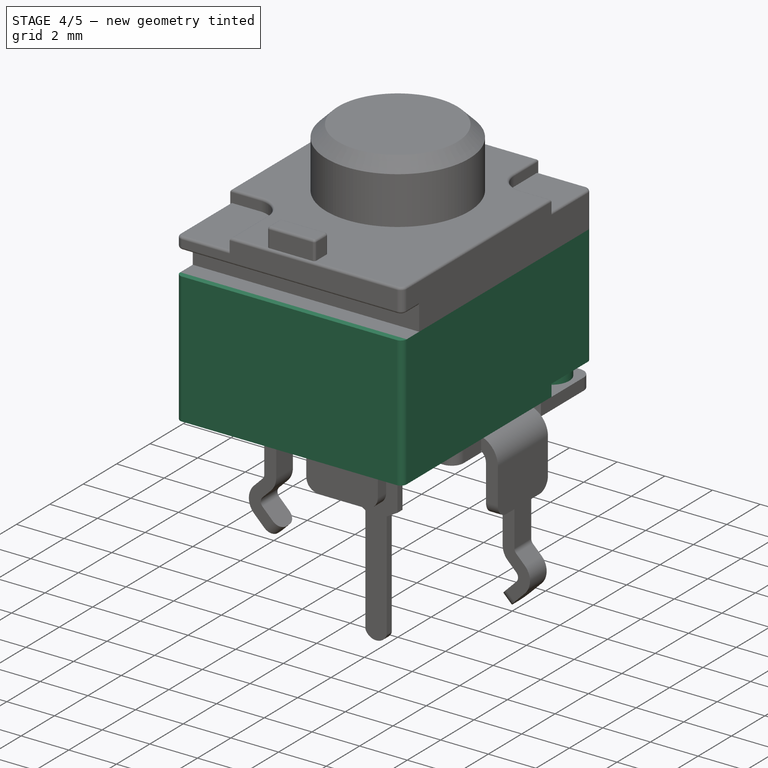
[diagram: stage 4 of 5 — iso view after this stage's code; geometry added in this stage tinted green]
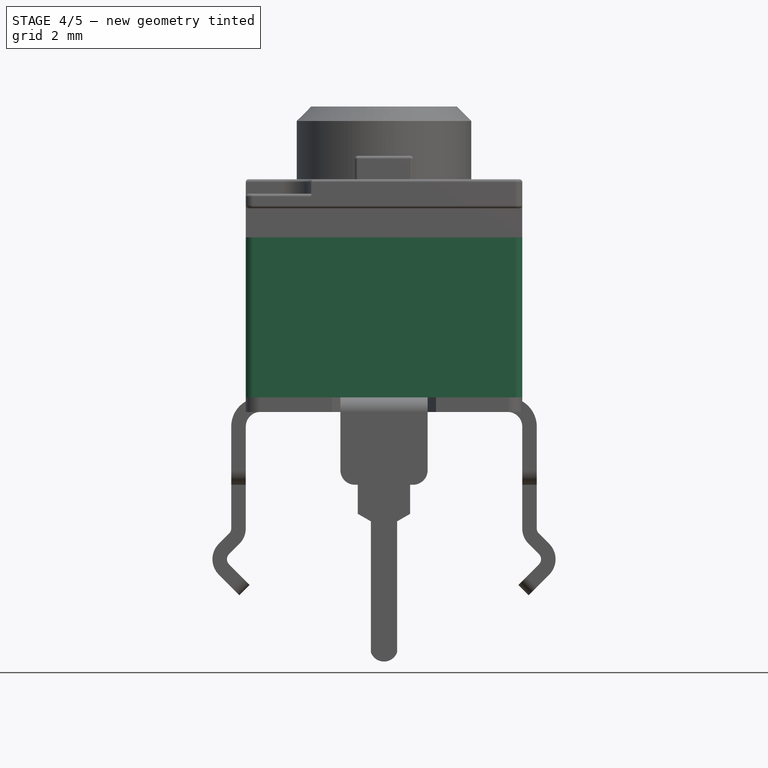
[diagram: stage 4 of 5 — front view after this stage's code; geometry added in this stage tinted green]
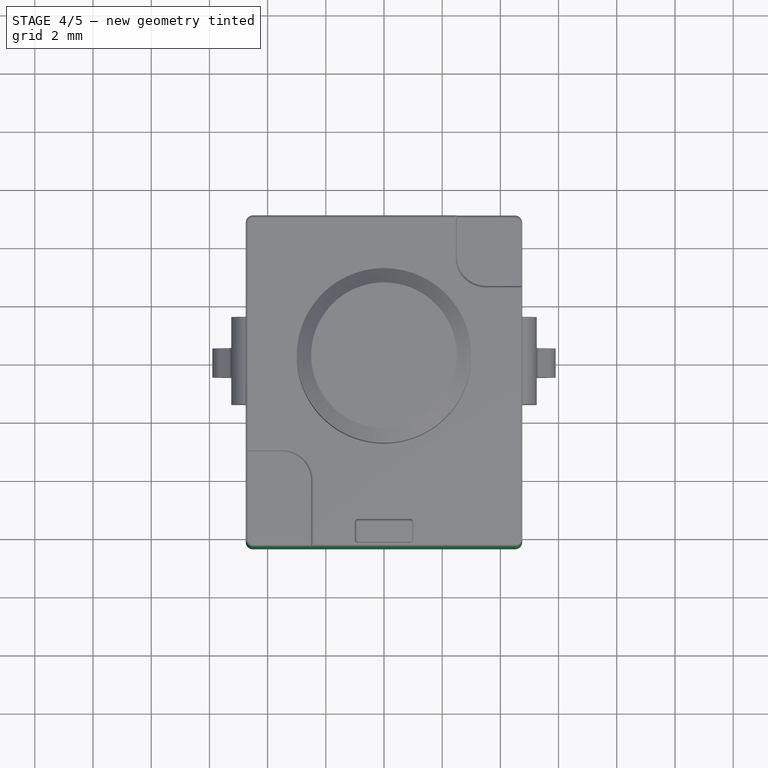
[diagram: stage 4 of 5 — top view after this stage's code; geometry added in this stage tinted green]
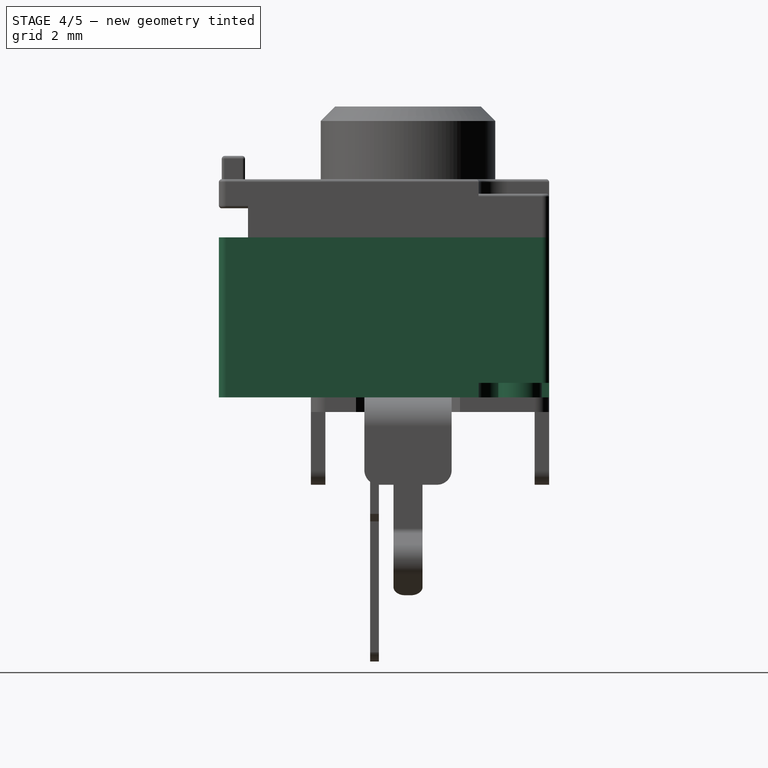
[diagram: stage 4 of 5 — right view after this stage's code; geometry added in this stage tinted green]
FEATURE [Sketcher::SketchObject] Sketch
  MapMode = 5
  Support = -> [XY_Plane]
  sketch-geometry (4):
    g0: LineSegment StartX=-4.75 StartY=4.85 StartZ=0 EndX=4.75 EndY=4.85 EndZ=0
    g1: LineSegment StartX=4.75 StartY=4.85 StartZ=0 EndX=4.75 EndY=-6.5 EndZ=0
    g2: LineSegment StartX=4.75 StartY=-6.5 StartZ=0 EndX=-4.75 EndY=-6.5 EndZ=0
    g3: LineSegment StartX=-4.75 StartY=-6.5 StartZ=0 EndX=-4.75 EndY=4.85 EndZ=0
  constraints (11):
    c: Coincident(g0,g1)
    c: Coincident(g1,g2)
    c: Coincident(g2,g3)
    c: Coincident(g3,g0)
    c: Horizontal(g2)
    c: Vertical(g1)
    c: Vertical(g3)
    c: Symmetric(g0,g0,g-2)
    c: DistanceX(g0,g0) = 9.5
    c: DistanceY(g-1,g0) = 4.85
    c: DistanceY(g1,g-1) = 6.5
FEATURE [PartDesign::Pad] Pad
  Length = 1.5
  Length2 = 100
  Profile = -> Sketch
  Type = 0
FEATURE [Sketcher::SketchObject] Sketch004
  AttachmentOffset = pos=(0,0,1.5) rot=(0,0,1;0rad)
  MapMode = 5
  Placement = pos=(0,0,1.5) rot=(0,0,1;0rad)
  Support = -> [XY_Plane001]
  expr: Constraints[10] = Sketch.Constraints[10]
  expr: Constraints[9] = Sketch.Constraints[9]
  expr: Constraints[8] = Sketch.Constraints[8]
  sketch-geometry (4):
    g0: LineSegment StartX=-4.75 StartY=4.85 StartZ=0 EndX=4.75 EndY=4.85 EndZ=0
    g1: LineSegment StartX=4.75 StartY=4.85 StartZ=0 EndX=4.75 EndY=-6.5 EndZ=0
    g2: LineSegment StartX=4.75 StartY=-6.5 StartZ=0 EndX=-4.75 EndY=-6.5 EndZ=0
    g3: LineSegment StartX=-4.75 StartY=-6.5 StartZ=0 EndX=-4.75 EndY=4.85 EndZ=0
  constraints (11):
    c: Coincident(g0,g1)
    c: Coincident(g1,g2)
    c: Coincident(g2,g3)
    c: Coincident(g3,g0)
    c: Horizontal(g2)
    c: Vertical(g1)
    c: Vertical(g3)
    c: Symmetric(g0,g0,g-2)
    c: DistanceX(g0,g0) = 9.5
    c: DistanceY(g-1,g0) = 4.85
    c: DistanceY(g1,g-1) = 6.5
FEATURE [PartDesign::Pad] Pad001
  Length = 4
  Length2 = 100
  Profile = -> Sketch004
  Type = 0
FEATURE [Sketcher::SketchObject] Sketch009
  MapMode = 5
  Support = -> [XY_Plane]
  expr: Constraints[22] = Sketch008.Constraints[27]
  expr: Constraints[9] = Sketch008.Constraints[9]
  expr: Constraints[27] = Sketch008.Constraints[36]
  expr: Constraints[23] = Sketch008.Constraints[29]
  expr: Constraints[10] = Sketch008.Constraints[10]
  expr: Constraints[8] = Sketch008.Constraints[8]
  sketch-geometry (14):
    g0: LineSegment [constr] StartX=-4.75 StartY=4.85 StartZ=0 EndX=4.75 EndY=4.85 EndZ=0
    g1: LineSegment [constr] StartX=4.75 StartY=4.85 StartZ=0 EndX=4.75 EndY=-6.5 EndZ=0
    g2: LineSegment [constr] StartX=4.75 StartY=-6.5 StartZ=0 EndX=-4.75 EndY=-6.5 EndZ=0
    g3: LineSegment [constr] StartX=-4.75 StartY=-6.5 StartZ=0 EndX=-4.75 EndY=4.85 EndZ=0
    g4: LineSegment StartX=4.75 StartY=4.85 StartZ=0 EndX=2.5 EndY=4.85 EndZ=0
    g5: LineSegment StartX=2.5 StartY=4.85 StartZ=0 EndX=2.5 EndY=3.425 EndZ=0
    g6: LineSegment StartX=3.5 StartY=2.425 StartZ=0 EndX=4.75 EndY=2.425 EndZ=0
    g7: LineSegment StartX=4.75 StartY=2.425 StartZ=0 EndX=4.75 EndY=4.85 EndZ=0
    g8: LineSegment StartX=-3.5 StartY=-3.25 StartZ=0 EndX=-4.75 EndY=-3.25 EndZ=0
    g9: LineSegment StartX=-4.75 StartY=-3.25 StartZ=0 EndX=-4.75 EndY=-5.25 EndZ=0
    g10: ArcOfCircle CenterX=3.5 CenterY=3.425 CenterZ=0 NormalX=0 NormalY=0 NormalZ=1 AngleXU=0 Radius=1 StartAngle=3.14159 EndAngle=4.71239
    g11: ArcOfCircle CenterX=-3.5 CenterY=-4.25 CenterZ=0 NormalX=0 NormalY=0 NormalZ=1 AngleXU=0 Radius=1 StartAngle=0 EndAngle=1.5708
    g12: ArcOfCircle CenterX=-3.5 CenterY=-4.25 CenterZ=0 NormalX=0 NormalY=0 NormalZ=1 AngleXU=0 Radius=1 StartAngle=4.71239 EndAngle=6.28319
    g13: LineSegment StartX=-3.5 StartY=-5.25 StartZ=0 EndX=-4.75 EndY=-5.25 EndZ=0
  constraints (39):
    c: Coincident(g0,g1)
    c: Coincident(g1,g2)
    c: Coincident(g2,g3)
    c: Coincident(g3,g0)
    c: Horizontal(g2)
    c: Vertical(g1)
    c: Vertical(g3)
    c: Symmetric(g0,g0,g-2)
    c: DistanceX(g0,g0) = 9.5
    c: DistanceY(g-1,g0) = 4.85
    c: DistanceY(g1,g-1) = 6.5
    c: Coincident(g4,g5)
    c: Coincident(g6,g7)
    c: Coincident(g7,g4)
    c: Horizontal(g4)
    c: Horizontal(g6)
    c: Vertical(g5)
    c: Vertical(g7)
    c: Coincident(g4,g0)
    c: Coincident(g8,g9)
    c: Horizontal(g8)
    c: Vertical(g9)
    c: DistanceX(g4,g4) = 2.25
    c: DistanceY(g7,g7) = 2.425
    c: Tangent(g5,g10) = -1.5708
    c: Tangent(g6,g10) = -1.5708
    c: Tangent(g8,g11) = -1.5708
    c: DistanceX(g5,g10) = 1
    c: Coincident(g12,g11)
    c: Coincident(g12,g11)
    c: Vertical(g12,g8)
    c: PointOnObject(g9,g3)
    c: Coincident(g13,g12)
    c: Coincident(g13,g9)
    c: Horizontal(g13)
    c: Horizontal(g11,g11)
    c: DistanceY(g2,g8) = 3.25
    c: DistanceY(g11,g8) = 1
    c: DistanceX(g2,g11) = 2.25
FEATURE [PartDesign::Pocket] Pocket003
  BaseFeature = -> Pad
  Length = 0.5
  Length2 = 100
  Profile = -> Sketch009
  Reversed = true
  Type = 0
FEATURE [PartDesign::Body] Body005  label="Rivet_Top_2"
  Group = -> [Sketch011,Pad004,Thickness001,Fillet002,Fillet003]
  Origin = -> Origin005
  Tip = -> Fillet003
FEATURE [Sketcher::SketchObject] Sketch012
  AttachmentOffset = pos=(3.75,3.85,0) rot=(0,0,1;1.5708rad)
  MapMode = 5
  Placement = pos=(3.75,3.85,0) rot=(0,0,1;1.5708rad)
  Support = -> [XY_Plane006]
  sketch-geometry (1):
    g0: Circle CenterX=0 CenterY=0 CenterZ=0 NormalX=0 NormalY=0 NormalZ=1 AngleXU=0 Radius=0.75
  constraints (2):
    c: Radius(g0) = 0.75
    c: Coincident(g0,g-1)
FEATURE [PartDesign::Pad] Pad005
  Length = 0.5
  Length2 = 100
  Profile = -> Sketch012
  Type = 0
FEATURE [PartDesign::Body] Body006  label="Rivet_Bot_1"
  Group = -> [Sketch012,Pad005,Fillet004]
  Origin = -> Origin006
  Tip = -> Fillet004
FEATURE [Sketcher::SketchObject] Sketch013
  AttachmentOffset = pos=(-3.75,-4.25,0) rot=(0,0,1;0rad)
  MapMode = 5
  Placement = pos=(-3.75,-4.25,0) rot=(0,0,1;0rad)
  Support = -> [XY_Plane007]
  sketch-geometry (1):
    g0: Circle CenterX=0 CenterY=0 CenterZ=0 NormalX=0 NormalY=0 NormalZ=1 AngleXU=0 Radius=0.75
  constraints (2):
    c: Coincident(g0,g-1)
    c: Radius(g0) = 0.75
FEATURE [PartDesign::Pad] Pad006
  Length = 0.5
  Length2 = 100
  Profile = -> Sketch013
  Type = 0
FEATURE [PartDesign::Fillet] Fillet005
  Base = -> Pad006 [Edge2]
  BaseFeature = -> Pad006
  Radius = 0.15
FEATURE [PartDesign::Fillet] Fillet006
  Base = -> Pocket003 [Edge4,Edge24,Edge31,Edge6]
  BaseFeature = -> Pocket003
  Radius = 0.25
FEATURE [PartDesign::Body] Body  label="Body_1_z=1.5"
  Group = -> [Sketch,Pad,Sketch009,Pocket003,Fillet006]
  Origin = -> Origin
  Tip = -> Fillet006
FEATURE [PartDesign::Fillet] Fillet007
  Base = -> Pad001 [Edge5,Edge8,Edge2,Edge1]
  BaseFeature = -> Pad001
  Radius = 0.25
FEATURE [PartDesign::Fillet] Fillet009
  Base = -> Fillet008 [Edge25,Edge23,Edge19,Edge4,Edge16,Edge17,Edge20,Edge22,Edge50,Edge48,Edge34,Edge5,Edge27]
  BaseFeature = -> Fillet008
  Radius = 0.1
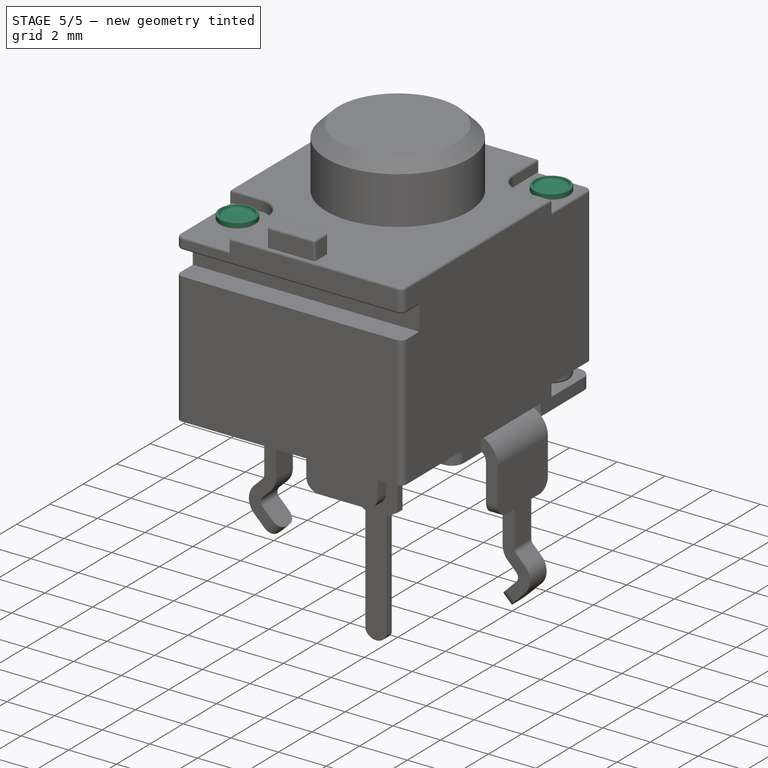
[diagram: stage 5 of 5 — iso view after this stage's code; geometry added in this stage tinted green]
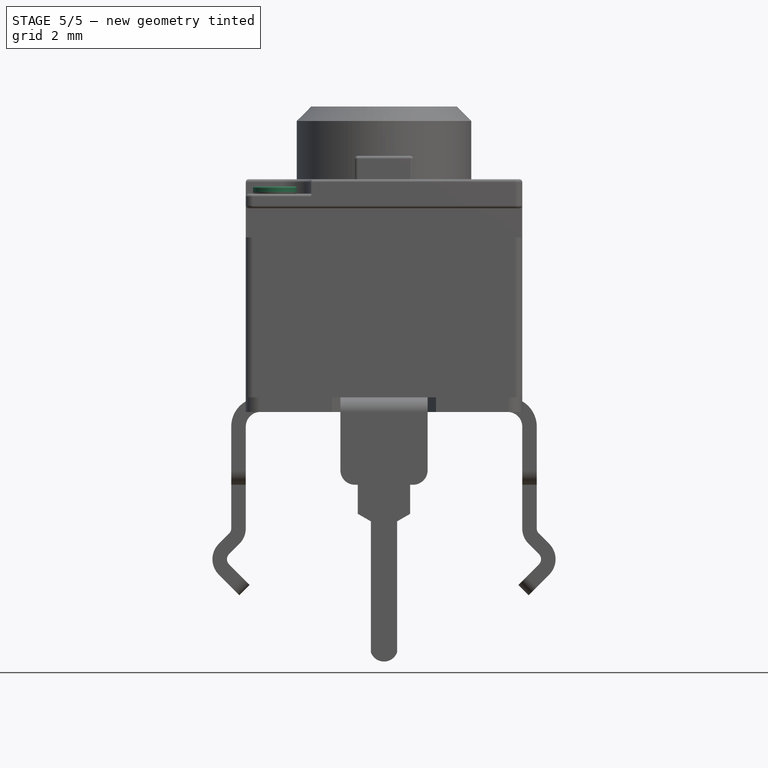
[diagram: stage 5 of 5 — front view after this stage's code; geometry added in this stage tinted green]
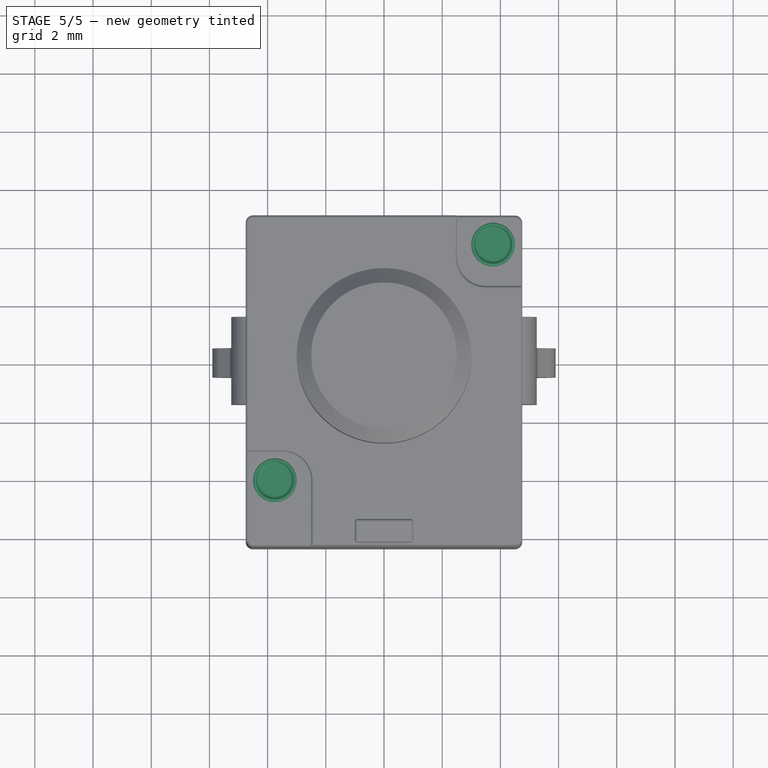
[diagram: stage 5 of 5 — top view after this stage's code; geometry added in this stage tinted green]
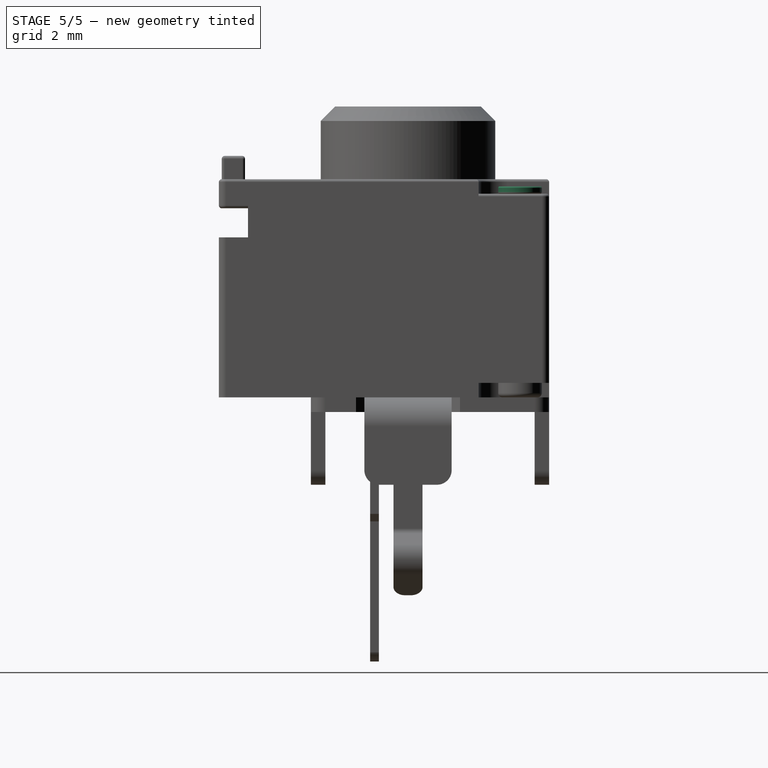
[diagram: stage 5 of 5 — right view after this stage's code; geometry added in this stage tinted green]
FEATURE [Sketcher::SketchObject] Sketch010
  AttachmentOffset = pos=(3.75,3.85,7) rot=(0,0,1;1.5708rad)
  MapMode = 5
  Placement = pos=(3.75,3.85,7) rot=(0,0,1;1.5708rad)
  Support = -> [XY_Plane004]
  sketch-geometry (1):
    g0: Circle CenterX=0 CenterY=0 CenterZ=0 NormalX=0 NormalY=0 NormalZ=1 AngleXU=0 Radius=0.75
  constraints (2):
    c: Coincident(g0,g-1)
    c: Radius(g0) = 0.75
FEATURE [PartDesign::Pad] Pad003
  Length = 0.25
  Length2 = 100
  Profile = -> Sketch010
  Type = 0
FEATURE [PartDesign::Thickness] Thickness
  Base = -> Pad003 [Face3]
  BaseFeature = -> Pad003
  Join = 0
  Mode = 0
  Reversed = true
  Value = 0.1
FEATURE [PartDesign::Fillet] Fillet
  Base = -> Thickness [Edge6]
  BaseFeature = -> Thickness
  Radius = 0.125
FEATURE [PartDesign::Fillet] Fillet001
  Base = -> Fillet [Edge6,Edge8]
  BaseFeature = -> Fillet
  Radius = 0.05
FEATURE [PartDesign::Body] Body004  label="Rivet_Top_1"
  Group = -> [Sketch010,Pad003,Thickness,Fillet,Fillet001]
  Origin = -> Origin004
  Tip = -> Fillet001
FEATURE [Sketcher::SketchObject] Sketch011
  AttachmentOffset = pos=(-3.75,-4.25,7) rot=(0,0,1;0rad)
  MapMode = 5
  Placement = pos=(-3.75,-4.25,7) rot=(0,0,1;0rad)
  Support = -> [XY_Plane005]
  sketch-geometry (1):
    g0: Circle CenterX=0 CenterY=0 CenterZ=0 NormalX=0 NormalY=0 NormalZ=1 AngleXU=0 Radius=0.75
  constraints (2):
    c: Radius(g0) = 0.75
    c: Coincident(g-1,g0)
FEATURE [PartDesign::Pad] Pad004
  Length = 0.25
  Length2 = 100
  Profile = -> Sketch011
  Type = 0
FEATURE [PartDesign::Thickness] Thickness001
  Base = -> Pad004 [Face3]
  BaseFeature = -> Pad004
  Join = 0
  Mode = 0
  Reversed = true
  Value = 0.1
FEATURE [PartDesign::Fillet] Fillet002
  Base = -> Thickness001 [Edge6]
  BaseFeature = -> Thickness001
  Radius = 0.13
FEATURE [PartDesign::Fillet] Fillet003
  Base = -> Fillet002 [Edge8,Edge6]
  BaseFeature = -> Fillet002
  Radius = 0.05
FEATURE [PartDesign::Fillet] Fillet004
  Base = -> Pad005 [Edge2]
  BaseFeature = -> Pad005
  Radius = 0.15
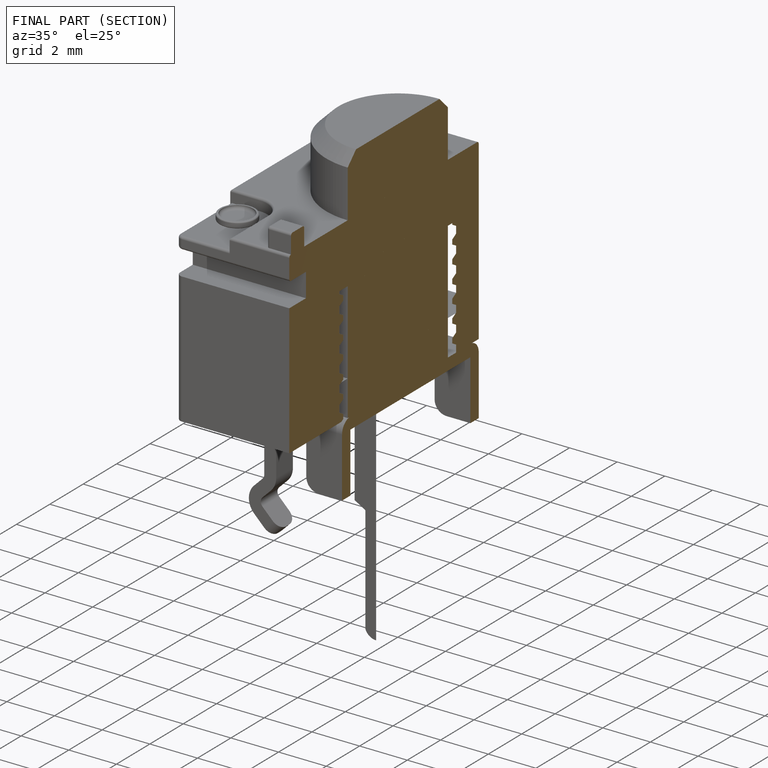
[diagram: finished part — half-section view (interior)]
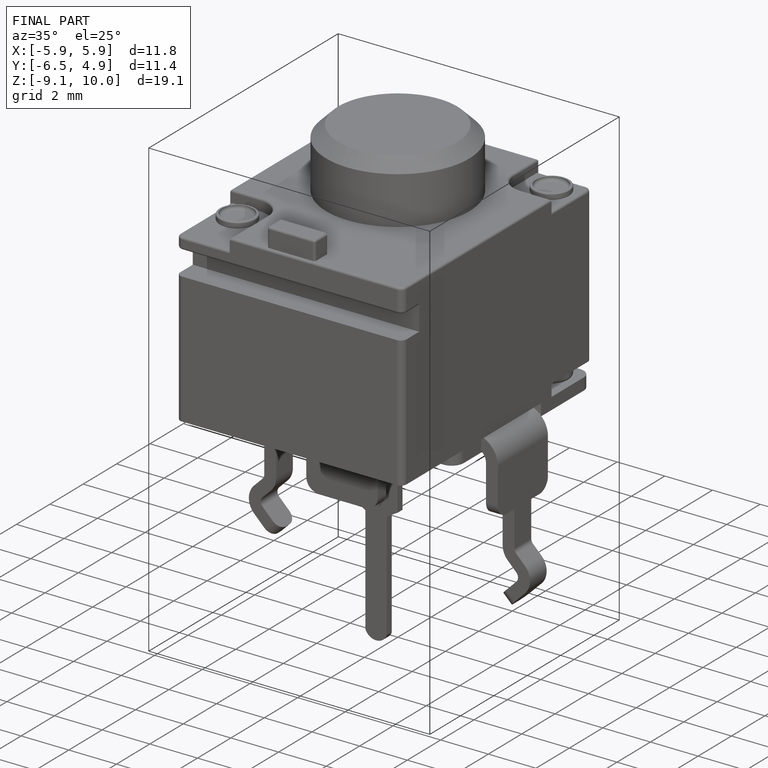
[diagram: finished part — iso view with bounding-box wireframe]
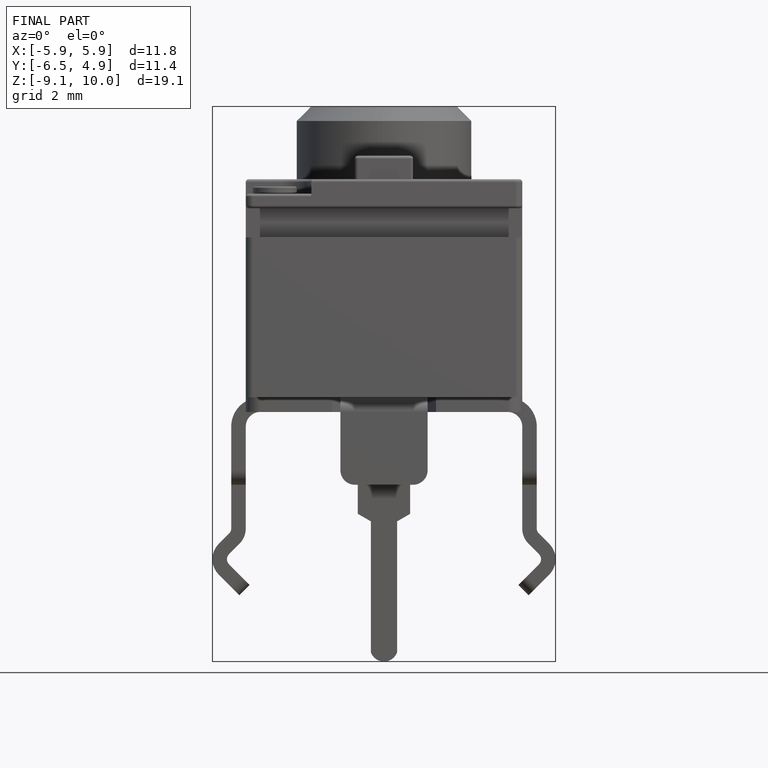
[diagram: finished part — front view with bounding-box wireframe]
